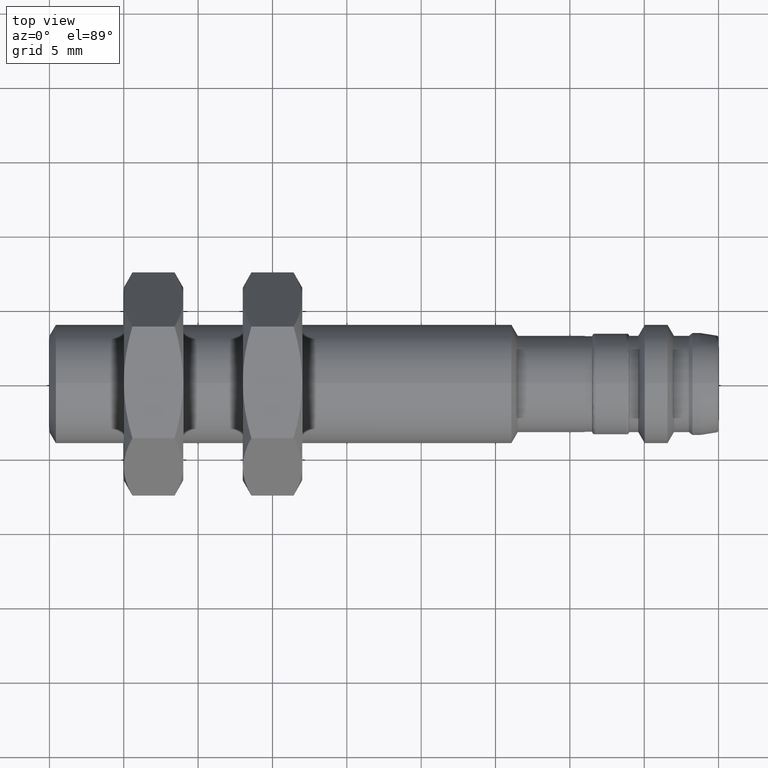
[diagram: clean part render]
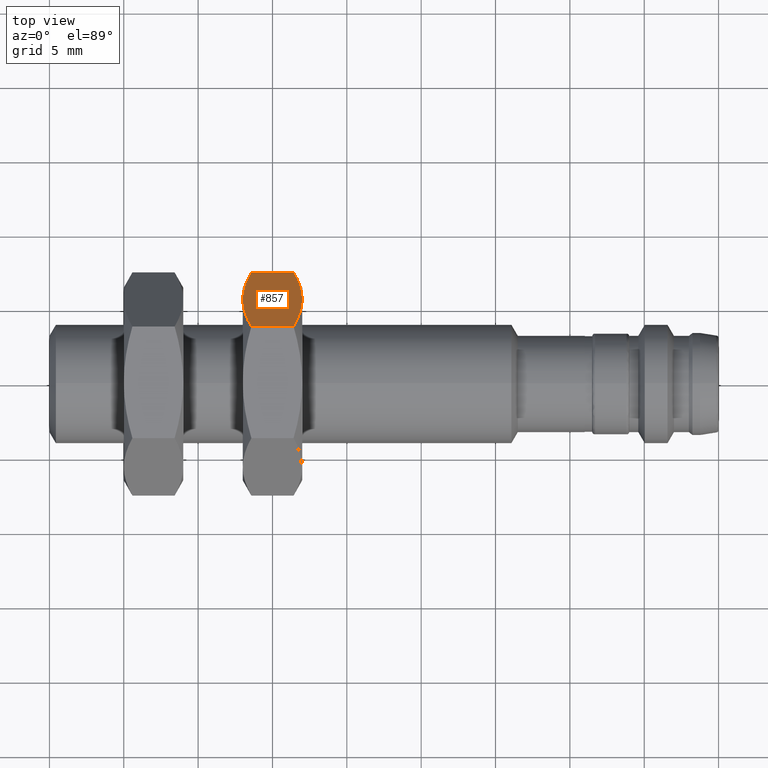
[diagram: same view with one face highlighted and labeled with its STEP entity id]
A machine part, top view. The second image highlights one B-rep face of the part: STEP entity #857.
In plain terms, the highlighted planar face has unit normal (0, -0.866, -0.5).
Its self-contained STEP definition (entity closure, byte-faithful):
#24 = EDGE_CURVE ( 'NONE', #1647, #301, #1774, .T. ) ;
#27 = ORIENTED_EDGE ( 'NONE', *, *, #1922, .F. ) ;
#49 = CARTESIAN_POINT ( 'NONE',  ( 0.5118110236203432528, 0.2216206741970919158, 0.1279527559056774511 ) ) ;
#51 = B_SPLINE_CURVE_WITH_KNOTS ( 'NONE', 3,
 ( #1460, #664, #1302, #1931 ),
 .UNSPECIFIED., .F., .F.,
 ( 4, 4 ),
 ( 3.139850978240509486E-11, 0.003797417514551343354 ),
 .UNSPECIFIED. ) ;
#55 = DIRECTION ( 'NONE',  ( -1.000000000000000000, -0.0000000000000000000, -0.0000000000000000000 ) ) ;
#90 = DIRECTION ( 'NONE',  ( -1.000000000000000000, -0.0000000000000000000, -0.0000000000000000000 ) ) ;
#96 = CARTESIAN_POINT ( 'NONE',  ( 0.5207326728523437032, 0.1718830868253949928, 0.2141007842786901705 ) ) ;
#100 = LINE ( 'NONE', #1687, #730 ) ;
#110 = CARTESIAN_POINT ( 'NONE',  ( 0.6464347797944440810, 0.2954942329183382621, -1.136106591394461519E-09 ) ) ;
#118 = DIRECTION ( 'NONE',  ( 0.0000000000000000000, 0.4999999999999998335, -0.8660254037844385966 ) ) ;
#146 = CARTESIAN_POINT ( 'NONE',  ( 0.6603696898452153796, 0.1718830881620188877, 0.2141007819635896425 ) ) ;
#235 = PLANE ( 'NONE',  #1196 ) ;
#268 = CARTESIAN_POINT ( 'NONE',  ( 0.7874015748031496509, 0.2954942322624066753, 0.0000000000000000000 ) ) ;
#301 = VERTEX_POINT ( 'NONE', #795 ) ;
#444 = CARTESIAN_POINT ( 'NONE',  ( 0.6464347797944444141, 0.1477471174430654288, 0.2559055118110236116 ) ) ;
#478 = ORIENTED_EDGE ( 'NONE', *, *, #1713, .F. ) ;
#485 = VERTEX_POINT ( 'NONE', #1916 ) ;
#508 = EDGE_CURVE ( 'NONE', #1501, #485, #1478, .T. ) ;
#573 = CARTESIAN_POINT ( 'NONE',  ( 0.5346675820301574067, 0.1477471161313932135, 0.2559055118110236116 ) ) ;
#576 = B_SPLINE_CURVE_WITH_KNOTS ( 'NONE', 3,
 ( #573, #96, #1679, #1370 ),
 .UNSPECIFIED., .F., .F.,
 ( 4, 4 ),
 ( 1.212705629200255275E-14, 0.003797417448764278756 ),
 .UNSPECIFIED. ) ;
#664 = CARTESIAN_POINT ( 'NONE',  ( 0.6603696880296641147, 0.2713582612964282603, 0.04180472504920851318 ) ) ;
#676 = CARTESIAN_POINT ( 'NONE',  ( 0.5207326728523158366, 0.2713582615681668364, 0.04180472753241690209 ) ) ;
#730 = VECTOR ( 'NONE', #90, 39.37007874015748143 ) ;
#732 = EDGE_CURVE ( 'NONE', #926, #301, #100, .T. ) ;
#765 = B_SPLINE_CURVE_WITH_KNOTS ( 'NONE', 3,
 ( #1266, #1600, #146, #791 ),
 .UNSPECIFIED., .F., .F.,
 ( 4, 4 ),
 ( 1.124797965795554860E-16, 0.003797417346080403031 ),
 .UNSPECIFIED. ) ;
#791 = CARTESIAN_POINT ( 'NONE',  ( 0.6464347797944444141, 0.1477471174430654288, 0.2559055118110236116 ) ) ;
#795 = CARTESIAN_POINT ( 'NONE',  ( 0.5346675820301574067, 0.2954942322625017659, -1.644928595704937663E-13 ) ) ;
#815 = CARTESIAN_POINT ( 'NONE',  ( 0.7874015748031496509, 0.1477471161312033376, 0.2559055118110235560 ) ) ;
#831 = EDGE_CURVE ( 'NONE', #926, #1032, #51, .T. ) ;
#857 = ADVANCED_FACE ( 'NONE', ( #1649 ), #235, .F. ) ;
#862 = ORIENTED_EDGE ( 'NONE', *, *, #732, .T. ) ;
#926 = VERTEX_POINT ( 'NONE', #110 ) ;
#1032 = VERTEX_POINT ( 'NONE', #1708 ) ;
#1075 = ORIENTED_EDGE ( 'NONE', *, *, #508, .F. ) ;
#1124 = CARTESIAN_POINT ( 'NONE',  ( 0.5118110236202818575, 0.2468345138671017847, 0.08428110454221229841 ) ) ;
#1196 = AXIS2_PLACEMENT_3D ( 'NONE', #268, #1212, #118 ) ;
#1212 = DIRECTION ( 'NONE',  ( 0.0000000000000000000, -0.8660254037844387076, -0.4999999999999998890 ) ) ;
#1230 = VECTOR ( 'NONE', #55, 39.37007874015748143 ) ;
#1252 = ORIENTED_EDGE ( 'NONE', *, *, #831, .F. ) ;
#1266 = CARTESIAN_POINT ( 'NONE',  ( 0.6692913385824746930, 0.2216206741967616800, 0.1279527559054867147 ) ) ;
#1302 = CARTESIAN_POINT ( 'NONE',  ( 0.6692913385824457162, 0.2468345141287501543, 0.08428110408947382670 ) ) ;
#1370 = CARTESIAN_POINT ( 'NONE',  ( 0.5118110236203432528, 0.2216206741970919158, 0.1279527559056774511 ) ) ;
#1445 = CARTESIAN_POINT ( 'NONE',  ( 0.5118110236203432528, 0.2216206741970919158, 0.1279527559056774511 ) ) ;
#1460 = CARTESIAN_POINT ( 'NONE',  ( 0.6464347797944440810, 0.2954942329183382621, -1.136106591394461519E-09 ) ) ;
#1478 = LINE ( 'NONE', #815, #1230 ) ;
#1501 = VERTEX_POINT ( 'NONE', #444 ) ;
#1600 = CARTESIAN_POINT ( 'NONE',  ( 0.6692913385824457162, 0.1964068352216147562, 0.1716244060644017411 ) ) ;
#1615 = ORIENTED_EDGE ( 'NONE', *, *, #24, .F. ) ;
#1641 = CARTESIAN_POINT ( 'NONE',  ( 0.5346675820301574067, 0.2954942322625017659, -1.644928595704937663E-13 ) ) ;
#1647 = VERTEX_POINT ( 'NONE', #1445 ) ;
#1649 = FACE_OUTER_BOUND ( 'NONE', #1820, .T. ) ;
#1679 = CARTESIAN_POINT ( 'NONE',  ( 0.5118110236201562913, 0.1964068345263390580, 0.1716244072686545774 ) ) ;
#1687 = CARTESIAN_POINT ( 'NONE',  ( 0.7874015748031496509, 0.2954942322624069528, -6.829619984160658046E-17 ) ) ;
#1708 = CARTESIAN_POINT ( 'NONE',  ( 0.6692913385824746930, 0.2216206741967616800, 0.1279527559054867147 ) ) ;
#1713 = EDGE_CURVE ( 'NONE', #1032, #1501, #765, .T. ) ;
#1774 = B_SPLINE_CURVE_WITH_KNOTS ( 'NONE', 3,
 ( #49, #1124, #676, #1641 ),
 .UNSPECIFIED., .F., .F.,
 ( 4, 4 ),
 ( 2.386746419614468228E-16, 0.003797417448759542527 ),
 .UNSPECIFIED. ) ;
#1820 = EDGE_LOOP ( 'NONE', ( #478, #1252, #862, #1615, #27, #1075 ) ) ;
#1916 = CARTESIAN_POINT ( 'NONE',  ( 0.5346675820301574067, 0.1477471161313932135, 0.2559055118110236116 ) ) ;
#1922 = EDGE_CURVE ( 'NONE', #485, #1647, #576, .T. ) ;
#1931 = CARTESIAN_POINT ( 'NONE',  ( 0.6692913385824746930, 0.2216206741967616800, 0.1279527559054867147 ) ) ;